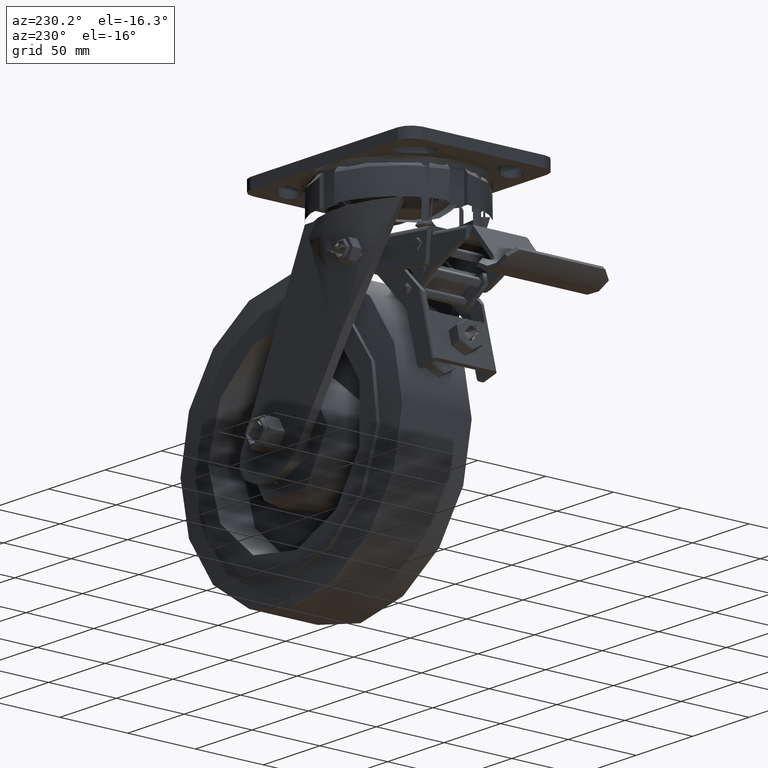
[diagram: clean part render]
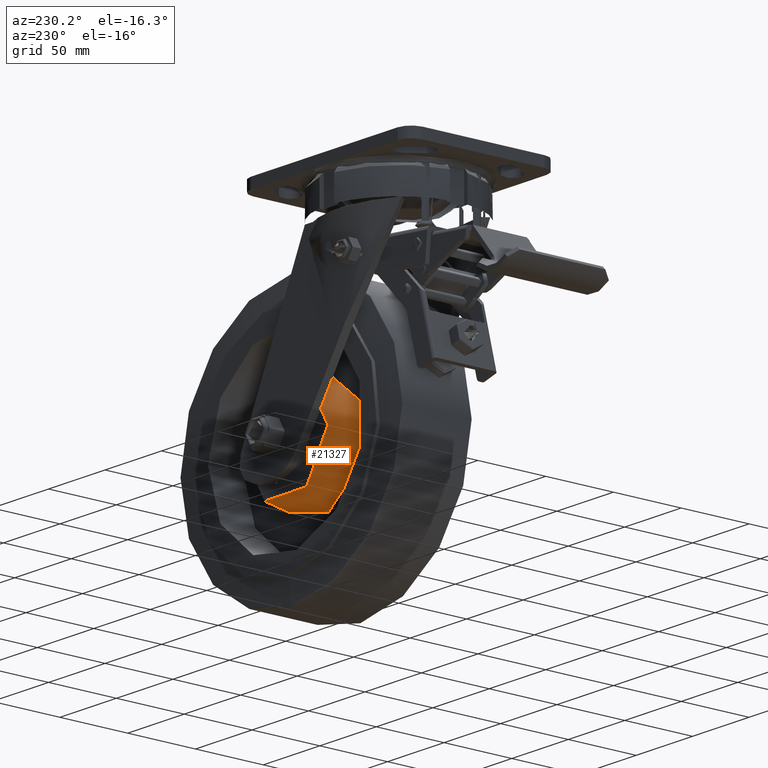
[diagram: same view with one face highlighted and labeled with its STEP entity id]
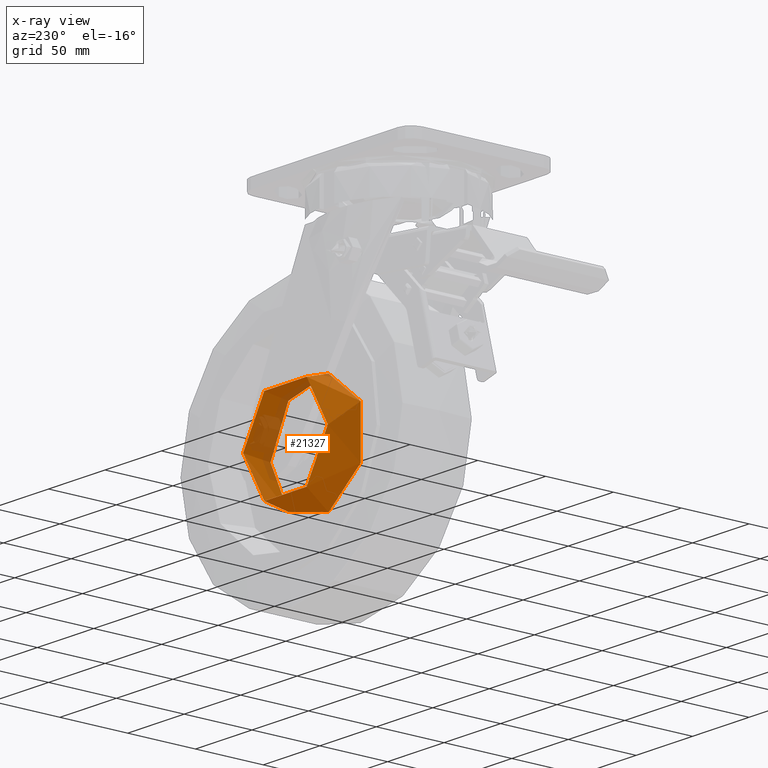
[diagram: x-ray of the same camera — body ghosted, the highlighted face saturated]
A machine part, auxiliary view. The second image highlights one B-rep face of the part: STEP entity #21327.
The next image is the same camera in x-ray: the body ghosted, the highlighted face saturated — about 16% of this face is hidden behind the body in this view.
In plain terms, the highlighted conical surface has half-angle 10.62 deg.
Its self-contained STEP definition (entity closure, byte-faithful):
#2304=CONICAL_SURFACE('',#23398,39.75,0.185347949995696);
#2842=FACE_OUTER_BOUND('',#4170,.T.);
#4170=EDGE_LOOP('',(#16452,#16453,#16454,#16455));
#5678=LINE('',#55185,#7111);
#7111=VECTOR('',#27034,39.75);
#8238=CIRCLE('',#23399,42.);
#8239=CIRCLE('',#23400,37.5);
#9598=VERTEX_POINT('',#55182);
#9599=VERTEX_POINT('',#55184);
#12101=EDGE_CURVE('',#9598,#9598,#8238,.T.);
#12102=EDGE_CURVE('',#9598,#9599,#5678,.T.);
#12103=EDGE_CURVE('',#9599,#9599,#8239,.T.);
#16452=ORIENTED_EDGE('',*,*,#12101,.T.);
#16453=ORIENTED_EDGE('',*,*,#12102,.T.);
#16454=ORIENTED_EDGE('',*,*,#12103,.F.);
#16455=ORIENTED_EDGE('',*,*,#12102,.F.);
#21327=ADVANCED_FACE('',(#2842),#2304,.T.);
#23398=AXIS2_PLACEMENT_3D('',#55181,#27030,#27031);
#23399=AXIS2_PLACEMENT_3D('',#55183,#27032,#27033);
#23400=AXIS2_PLACEMENT_3D('',#55186,#27035,#27036);
#27030=DIRECTION('center_axis',(3.49148336110938E-15,-1.,0.));
#27031=DIRECTION('ref_axis',(-1.,-3.49148336110938E-15,0.));
#27032=DIRECTION('center_axis',(-3.49148336110938E-15,1.,0.));
#27033=DIRECTION('ref_axis',(-1.,-3.49148336110938E-15,0.));
#27034=DIRECTION('',(-0.18428853505019,0.982872186934321,-2.25688364568766E-17));
#27035=DIRECTION('center_axis',(-3.49148336110938E-15,1.,0.));
#27036=DIRECTION('ref_axis',(-1.,-3.49148336110938E-15,0.));
#55181=CARTESIAN_POINT('Origin',(-5.93772535480152E-14,18.,0.));
#55182=CARTESIAN_POINT('',(42.,6.00000000000013,5.14351655641888E-15));
#55183=CARTESIAN_POINT('Origin',(-1.74794532147026E-14,5.99999999999998,
0.));
#55184=CARTESIAN_POINT('',(37.4999999999999,30.0000000000001,4.59242549680257E-15));
#55185=CARTESIAN_POINT('',(39.7499999999999,18.0000000000001,4.86797102661073E-15));
#55186=CARTESIAN_POINT('Origin',(-1.01275053881328E-13,30.,0.));